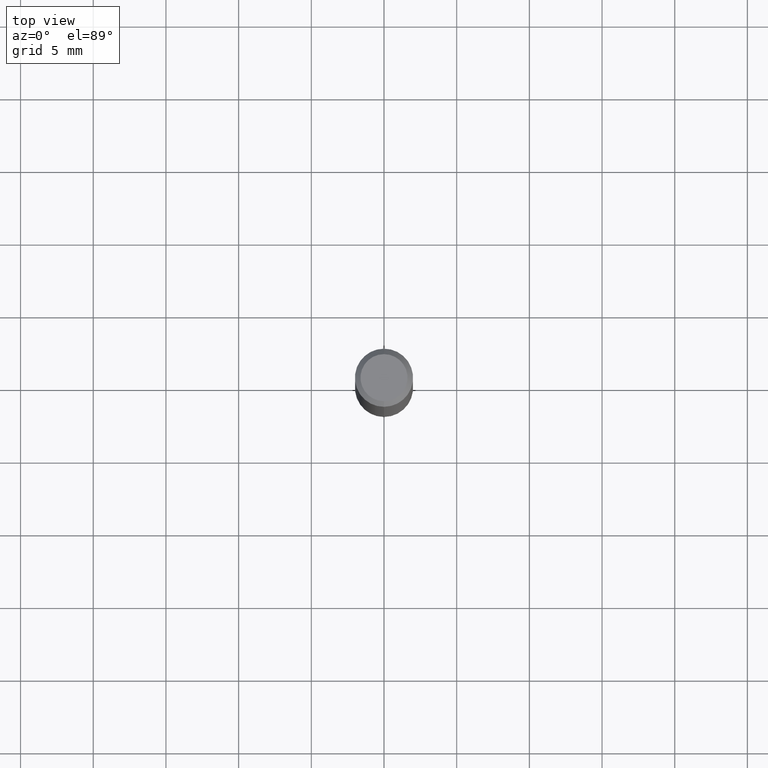
[diagram: clean part render]
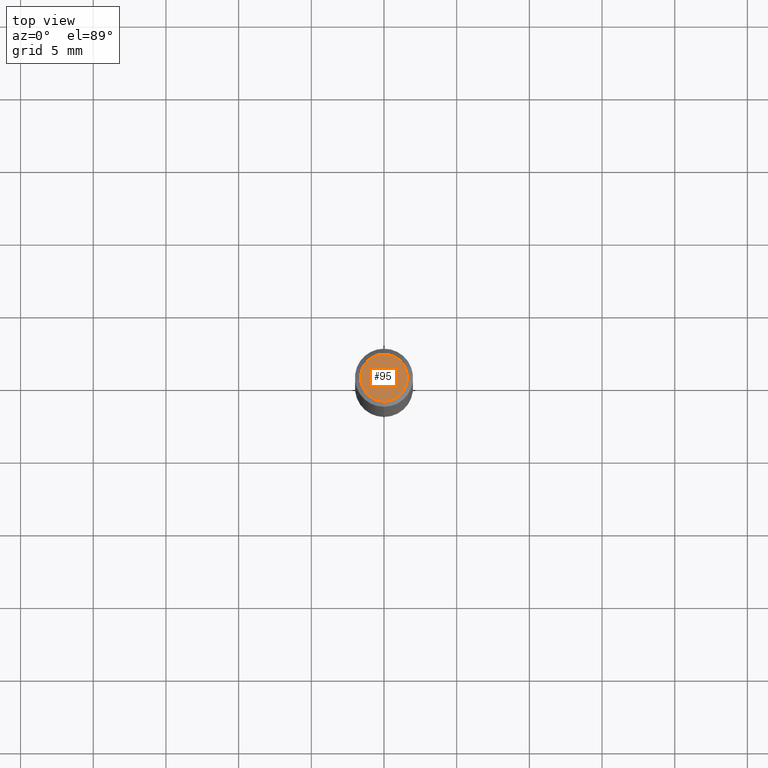
[diagram: same view with one face highlighted and labeled with its STEP entity id]
A machine part, top view. The second image highlights one B-rep face of the part: STEP entity #95.
In plain terms, the highlighted planar face has unit normal (0, -0, -1).
Its self-contained STEP definition (entity closure, byte-faithful):
#24 = DIRECTION ( 'NONE',  ( -2.445486363114738978E-29, 3.491456196320676645E-15, 1.000000000000000000 ) ) ;
#44 = CARTESIAN_POINT ( 'NONE',  ( 4.975360907851465623E-16, 0.06374999999999998723, -2.394024591375393642E-16 ) ) ;
#46 = AXIS2_PLACEMENT_3D ( 'NONE', #172, #130, #452 ) ;
#52 = CIRCLE ( 'NONE', #507, 0.06374999999999998723 ) ;
#53 = EDGE_CURVE ( 'NONE', #289, #451, #490, .T. ) ;
#75 = CARTESIAN_POINT ( 'NONE',  ( 4.113828125292592034E-46, -5.873371823000914863E-32, -1.682212662209630348E-17 ) ) ;
#95 = ADVANCED_FACE ( 'NONE', ( #199 ), #304, .F. ) ;
#121 = ORIENTED_EDGE ( 'NONE', *, *, #53, .T. ) ;
#130 = DIRECTION ( 'NONE',  ( 2.445486363114738978E-29, -3.491456196320676251E-15, -1.000000000000000000 ) ) ;
#159 = DIRECTION ( 'NONE',  ( -2.445486363114738978E-29, 3.491456196320676645E-15, 1.000000000000000000 ) ) ;
#172 = CARTESIAN_POINT ( 'NONE',  ( 4.451638707024993845E-16, 0.06374999999999998723, -2.309913958264912248E-16 ) ) ;
#199 = FACE_OUTER_BOUND ( 'NONE', #256, .T. ) ;
#202 = EDGE_CURVE ( 'NONE', #451, #289, #52, .T. ) ;
#225 = CARTESIAN_POINT ( 'NONE',  ( 4.113828125292592034E-46, -5.873371823000914863E-32, -1.682212662209630348E-17 ) ) ;
#256 = EDGE_LOOP ( 'NONE', ( #496, #121 ) ) ;
#289 = VERTEX_POINT ( 'NONE', #504 ) ;
#304 = PLANE ( 'NONE',  #46 ) ;
#325 = DIRECTION ( 'NONE',  ( -6.982962677686265922E-15, -1.000000000000000000, 3.491456196320676645E-15 ) ) ;
#386 = DIRECTION ( 'NONE',  ( -6.982962677686265922E-15, -1.000000000000000000, 3.491456196320676645E-15 ) ) ;
#429 = AXIS2_PLACEMENT_3D ( 'NONE', #75, #159, #325 ) ;
#451 = VERTEX_POINT ( 'NONE', #44 ) ;
#452 = DIRECTION ( 'NONE',  ( 6.982962677686265922E-15, 1.000000000000000000, -3.491456196320676251E-15 ) ) ;
#490 = CIRCLE ( 'NONE', #429, 0.06374999999999998723 ) ;
#496 = ORIENTED_EDGE ( 'NONE', *, *, #202, .T. ) ;
#504 = CARTESIAN_POINT ( 'NONE',  ( -4.888104823412212925E-16, -0.06374999999999998723, 2.057582058933467819E-16 ) ) ;
#507 = AXIS2_PLACEMENT_3D ( 'NONE', #225, #24, #386 ) ;